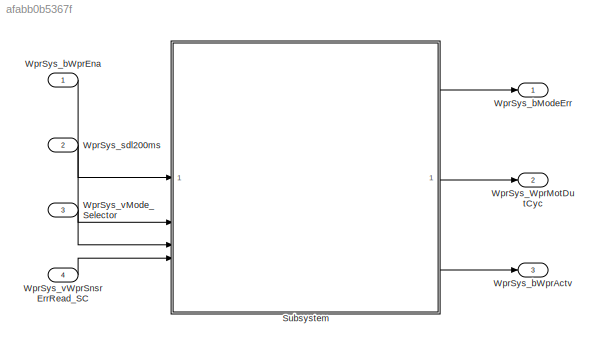
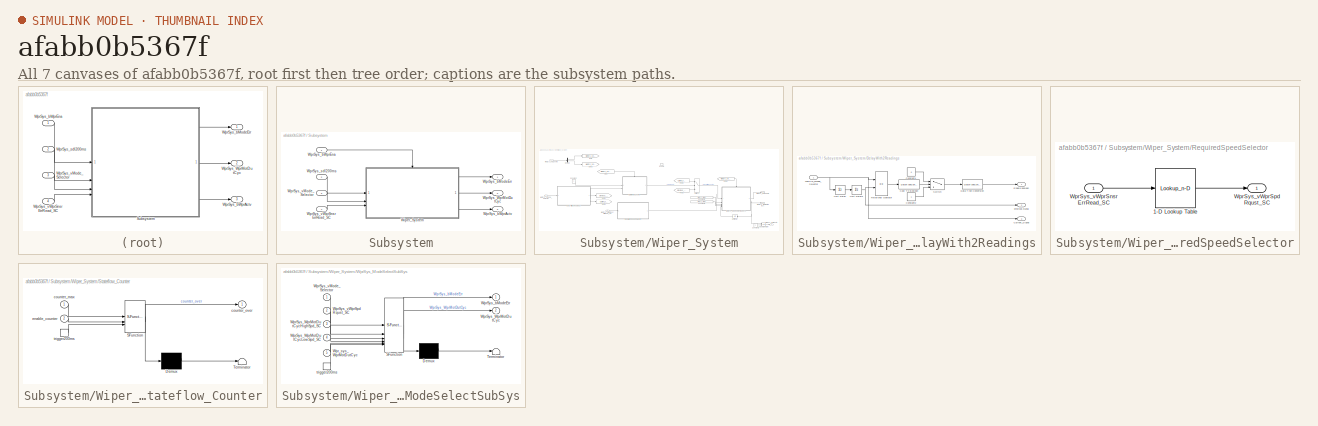
[diagram: thumbnail index - all 7 canvases of the model, root first then tree order]
MODEL slx_afabb0b5367f
KIND model
CONFIG AbsTol = auto
CONFIG EnableMultiTasking = off
CONFIG FixedStep = 0.1
CONFIG MaxStep = auto
CONFIG MinStep = auto
CONFIG RelTol = 1e-3
CONFIG SampleTimeConstraint = Unconstrained
CONFIG SolverName = FixedStepDiscrete
CONFIG StartTime = 0.0
CONFIG StopTime = 10.0
WORKSPACE source: mxarray member
WORKSPACE Param: Simulink.Parameter (value not decoded)
WORKSPACE WprSys_WprMotDutCycHighSpd = 0.7
WORKSPACE WprSys_WprMotDutCycHighSpd_SC = 0.7
WORKSPACE WprSys_WprMotDutCycLowSpd = 0.4
WORKSPACE WprSys_WprMotDutCycLowSpd_SC = 0.4
WORKSPACE WprSys_deltaSatVal = 0.05
WORKSPACE WprSys_vWprSnsrErrRead_SC: Simulink.Parameter (value not decoded)
WORKSPACE WprSys_vWprSpdRqust_SC: Simulink.Parameter (value not decoded)
BLOCK [SubSystem] Subsystem
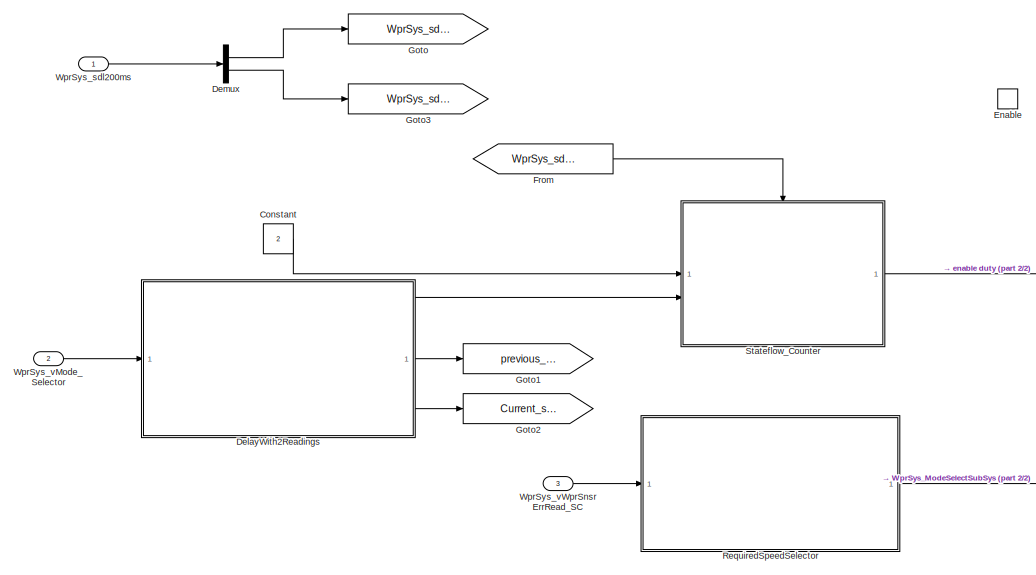
[diagram: Subsystem/Wiper_System - part 1/2, left side, full height]
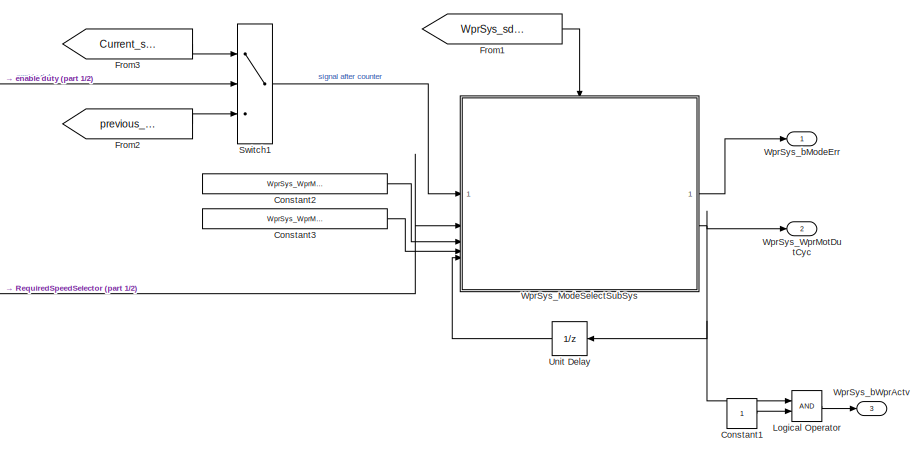
[diagram: Subsystem/Wiper_System - part 2/2, middle right region]
BLOCK [SubSystem] Subsystem/Wiper_System
BLOCK [Constant] Subsystem/Wiper_System/Constant
  Value = 2
BLOCK [Constant] Subsystem/Wiper_System/Constant1
BLOCK [Constant] Subsystem/Wiper_System/Constant2
  Value = WprSys_WprMotDutCycHighSpd_SC
BLOCK [Constant] Subsystem/Wiper_System/Constant3
  Value = WprSys_WprMotDutCycLowSpd_SC
BLOCK [SubSystem] Subsystem/Wiper_System/DelayWith2Readings
BLOCK [DataTypeConversion] Subsystem/Wiper_System/DelayWith2Readings/Cast To Boolean
  OutDataTypeStr = boolean
  RndMeth = Floor
  SaturateOnIntegerOverflow = off
BLOCK [Constant] Subsystem/Wiper_System/DelayWith2Readings/Constant1
  Value = 0
BLOCK [Constant] Subsystem/Wiper_System/DelayWith2Readings/Constant2
BLOCK [Outport] Subsystem/Wiper_System/DelayWith2Readings/Current_Signal
  Port = 3
BLOCK [DataTypeConversion] Subsystem/Wiper_System/DelayWith2Readings/Data Type Conversion
  OutDataTypeStr = boolean
  RndMeth = Floor
  SaturateOnIntegerOverflow = off
BLOCK [Outport] Subsystem/Wiper_System/DelayWith2Readings/Enable boolean
BLOCK [RelationalOperator] Subsystem/Wiper_System/DelayWith2Readings/Relational Operator
  InputSameDT = off
  Operator = ==
  OutDataTypeStr = boolean
  RndMeth = Simplest
BLOCK [Switch] Subsystem/Wiper_System/DelayWith2Readings/Switch
  Criteria = u2 ~= 0
  InputSameDT = off
  SaturateOnIntegerOverflow = off
BLOCK [UnitDelay] Subsystem/Wiper_System/DelayWith2Readings/Unit Delay
  HasFrameUpgradeWarning = on
  SampleTime = -1
BLOCK [UnitDelay] Subsystem/Wiper_System/DelayWith2Readings/Unit Delay1
  HasFrameUpgradeWarning = on
  SampleTime = -1
BLOCK [Inport] Subsystem/Wiper_System/DelayWith2Readings/WprSys_vMode_Selector
BLOCK [Outport] Subsystem/Wiper_System/DelayWith2Readings/previous signal
  Port = 2
BLOCK [Demux] Subsystem/Wiper_System/Demux
  Outputs = 2
BLOCK [EnablePort] Subsystem/Wiper_System/Enable
BLOCK [From] Subsystem/Wiper_System/From
  GotoTag = WprSys_sdl200msCount
BLOCK [From] Subsystem/Wiper_System/From1
  GotoTag = WprSys_sdl200msModSel
BLOCK [From] Subsystem/Wiper_System/From2
  GotoTag = previous_signal
BLOCK [From] Subsystem/Wiper_System/From3
  GotoTag = Current_signal
BLOCK [Goto] Subsystem/Wiper_System/Goto
  GotoTag = WprSys_sdl200msCount
BLOCK [Goto] Subsystem/Wiper_System/Goto1
  GotoTag = previous_signal
BLOCK [Goto] Subsystem/Wiper_System/Goto2
  GotoTag = Current_signal
BLOCK [Goto] Subsystem/Wiper_System/Goto3
  GotoTag = WprSys_sdl200msModSel
BLOCK [Logic] Subsystem/Wiper_System/Logical Operator
  AllPortsSameDT = off
  OutDataTypeStr = boolean
BLOCK [SubSystem] Subsystem/Wiper_System/RequiredSpeedSelector
BLOCK [Lookup_n-D] Subsystem/Wiper_System/RequiredSpeedSelector/1-D Lookup Table
  BreakpointsForDimension1 = WprSys_vWprSpdRqust_SC
  InputPortMap = u0
  InternalRulePriority = Speed
  InterpMethod = Linear Lagrange
  NumberOfTableDimensions = 1
  RndMeth = Simplest
  Table = WprSys_vWprSnsrErrRead_SC
BLOCK [Inport] Subsystem/Wiper_System/RequiredSpeedSelector/WprSys_vWprSnsrErrRead_SC
BLOCK [Outport] Subsystem/Wiper_System/RequiredSpeedSelector/WprSys_vWprSpdRqust_SC
BLOCK [SubSystem] Subsystem/Wiper_System/Stateflow_Counter
  AncestorBlock = Counter_timer/Stateflow_Counter
  ErrorFcn = Stateflow.Translate.translate
  LibrarySourceBlock = Counter_timer/Stateflow_Counter
  PermitHierarchicalResolution = ExplicitOnly
  SFBlockType = Chart
  TreatAsAtomicUnit = on
BLOCK [Demux] Subsystem/Wiper_System/Stateflow_Counter/ Demux 
  Outputs = 1
BLOCK [S-Function] Subsystem/Wiper_System/Stateflow_Counter/ SFunction 
  EnableBusSupport = on
  FunctionName = sf_sfun
  PortCounts = [3 2]
  SFcnIsStateOwnerBlock = off
  SFunctionDeploymentMode = off
  Tag = Stateflow S-Function 3
BLOCK [Terminator] Subsystem/Wiper_System/Stateflow_Counter/ Terminator 
BLOCK [Inport] Subsystem/Wiper_System/Stateflow_Counter/counter_max
BLOCK [Outport] Subsystem/Wiper_System/Stateflow_Counter/counter_over
BLOCK [Inport] Subsystem/Wiper_System/Stateflow_Counter/enable_counter
  Port = 2
BLOCK [TriggerPort] Subsystem/Wiper_System/Stateflow_Counter/trigger200ms
  ShowOutputPort = on
  StatesWhenEnabling = held
  TriggerType = either
  VariantControl = (inherit)
BLOCK [Switch] Subsystem/Wiper_System/Switch1
  Criteria = u2 ~= 0
  InputSameDT = off
  SaturateOnIntegerOverflow = off
BLOCK [UnitDelay] Subsystem/Wiper_System/Unit Delay
  HasFrameUpgradeWarning = on
  SampleTime = -1
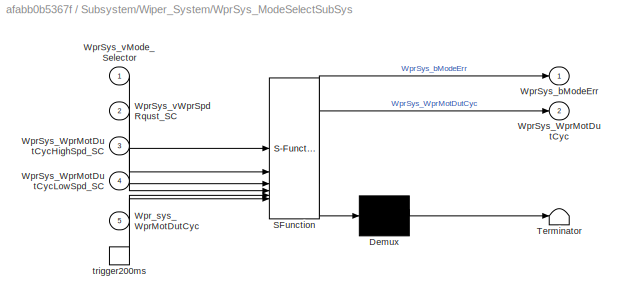
BLOCK [SubSystem] Subsystem/Wiper_System/WprSys_ModeSelectSubSys
  ErrorFcn = Stateflow.Translate.translate
  PermitHierarchicalResolution = ExplicitOnly
  SFBlockType = Chart
  TreatAsAtomicUnit = on
BLOCK [Demux] Subsystem/Wiper_System/WprSys_ModeSelectSubSys/ Demux 
  Outputs = 1
BLOCK [S-Function] Subsystem/Wiper_System/WprSys_ModeSelectSubSys/ SFunction 
  EnableBusSupport = on
  FunctionName = sf_sfun
  Parameters = WprSys_deltaSatVal
  PortCounts = [6 3]
  SFcnIsStateOwnerBlock = off
  SFunctionDeploymentMode = off
  Tag = Stateflow S-Function 1
BLOCK [Terminator] Subsystem/Wiper_System/WprSys_ModeSelectSubSys/ Terminator 
BLOCK [Outport] Subsystem/Wiper_System/WprSys_ModeSelectSubSys/WprSys_WprMotDutCyc
  Port = 2
BLOCK [Inport] Subsystem/Wiper_System/WprSys_ModeSelectSubSys/WprSys_WprMotDutCycHighSpd_SC
  Port = 3
BLOCK [Inport] Subsystem/Wiper_System/WprSys_ModeSelectSubSys/WprSys_WprMotDutCycLowSpd_SC
  Port = 4
BLOCK [Outport] Subsystem/Wiper_System/WprSys_ModeSelectSubSys/WprSys_bModeErr
BLOCK [Inport] Subsystem/Wiper_System/WprSys_ModeSelectSubSys/WprSys_vMode_Selector
BLOCK [Inport] Subsystem/Wiper_System/WprSys_ModeSelectSubSys/WprSys_vWprSpdRqust_SC
  Port = 2
BLOCK [Inport] Subsystem/Wiper_System/WprSys_ModeSelectSubSys/Wpr_sys_WprMotDutCyc
  Port = 5
BLOCK [TriggerPort] Subsystem/Wiper_System/WprSys_ModeSelectSubSys/trigger200ms
  ShowOutputPort = on
  StatesWhenEnabling = held
  TriggerType = either
  VariantControl = (inherit)
BLOCK [Outport] Subsystem/Wiper_System/WprSys_WprMotDutCyc
  Port = 2
BLOCK [Outport] Subsystem/Wiper_System/WprSys_bModeErr
BLOCK [Outport] Subsystem/Wiper_System/WprSys_bWprActv
  Port = 3
BLOCK [Inport] Subsystem/Wiper_System/WprSys_sdl200ms
BLOCK [Inport] Subsystem/Wiper_System/WprSys_vMode_Selector
  Port = 2
BLOCK [Inport] Subsystem/Wiper_System/WprSys_vWprSnsrErrRead_SC
  Port = 3
BLOCK [Outport] Subsystem/WprSys_WprMotDutCyc
  Port = 2
BLOCK [Outport] Subsystem/WprSys_bModeErr
BLOCK [Outport] Subsystem/WprSys_bWprActv
  Port = 3
BLOCK [Inport] Subsystem/WprSys_bWprEna
BLOCK [Inport] Subsystem/WprSys_sdl200ms
  Port = 2
BLOCK [Inport] Subsystem/WprSys_vMode_Selector
  Port = 3
BLOCK [Inport] Subsystem/WprSys_vWprSnsrErrRead_SC
  Port = 4
BLOCK [Outport] WprSys_WprMotDutCyc
  Port = 2
BLOCK [Outport] WprSys_bModeErr
BLOCK [Outport] WprSys_bWprActv
  Port = 3
BLOCK [Inport] WprSys_bWprEna
BLOCK [Inport] WprSys_sdl200ms
  Port = 2
BLOCK [Inport] WprSys_vMode_Selector
  Port = 3
BLOCK [Inport] WprSys_vWprSnsrErrRead_SC
  Port = 4
LINE Subsystem/Wiper_System/Constant1:1 -> Subsystem/Wiper_System/Logical Operator:2
LINE Subsystem/Wiper_System/Constant2:1 -> Subsystem/Wiper_System/WprSys_ModeSelectSubSys:3
LINE Subsystem/Wiper_System/Constant3:1 -> Subsystem/Wiper_System/WprSys_ModeSelectSubSys:4
LINE Subsystem/Wiper_System/Constant:1 -> Subsystem/Wiper_System/Stateflow_Counter:1
LINE Subsystem/Wiper_System/DelayWith2Readings/Cast To Boolean:1 -> Subsystem/Wiper_System/DelayWith2Readings/Switch:2
LINE Subsystem/Wiper_System/DelayWith2Readings/Constant1:1 -> Subsystem/Wiper_System/DelayWith2Readings/Switch:1
LINE Subsystem/Wiper_System/DelayWith2Readings/Constant2:1 -> Subsystem/Wiper_System/DelayWith2Readings/Switch:3
LINE Subsystem/Wiper_System/DelayWith2Readings/Data Type Conversion:1 -> Subsystem/Wiper_System/DelayWith2Readings/Enable boolean:1
LINE Subsystem/Wiper_System/DelayWith2Readings/Relational Operator:1 -> Subsystem/Wiper_System/DelayWith2Readings/Cast To Boolean:1
LINE Subsystem/Wiper_System/DelayWith2Readings/Switch:1 -> Subsystem/Wiper_System/DelayWith2Readings/Data Type Conversion:1
NET Subsystem/Wiper_System/DelayWith2Readings/Unit Delay1:1 -> Subsystem/Wiper_System/DelayWith2Readings/Relational Operator:2, Subsystem/Wiper_System/DelayWith2Readings/previous signal:1
LINE Subsystem/Wiper_System/DelayWith2Readings/Unit Delay:1 -> Subsystem/Wiper_System/DelayWith2Readings/Unit Delay1:1
NET Subsystem/Wiper_System/DelayWith2Readings/WprSys_vMode_Selector:1 -> Subsystem/Wiper_System/DelayWith2Readings/Current_Signal:1, Subsystem/Wiper_System/DelayWith2Readings/Relational Operator:1, Subsystem/Wiper_System/DelayWith2Readings/Unit Delay:1
LINE Subsystem/Wiper_System/DelayWith2Readings:1 -> Subsystem/Wiper_System/Stateflow_Counter:2
LINE Subsystem/Wiper_System/DelayWith2Readings:2 -> Subsystem/Wiper_System/Goto1:1
LINE Subsystem/Wiper_System/DelayWith2Readings:3 -> Subsystem/Wiper_System/Goto2:1
LINE Subsystem/Wiper_System/Demux:1 -> Subsystem/Wiper_System/Goto:1
LINE Subsystem/Wiper_System/Demux:2 -> Subsystem/Wiper_System/Goto3:1
LINE Subsystem/Wiper_System/From1:1 -> Subsystem/Wiper_System/WprSys_ModeSelectSubSys:trigger
LINE Subsystem/Wiper_System/From2:1 -> Subsystem/Wiper_System/Switch1:3
LINE Subsystem/Wiper_System/From3:1 -> Subsystem/Wiper_System/Switch1:1
LINE Subsystem/Wiper_System/From:1 -> Subsystem/Wiper_System/Stateflow_Counter:trigger
LINE Subsystem/Wiper_System/Logical Operator:1 -> Subsystem/Wiper_System/WprSys_bWprActv:1
LINE Subsystem/Wiper_System/RequiredSpeedSelector/1-D Lookup Table:1 -> Subsystem/Wiper_System/RequiredSpeedSelector/WprSys_vWprSpdRqust_SC:1
LINE Subsystem/Wiper_System/RequiredSpeedSelector/WprSys_vWprSnsrErrRead_SC:1 -> Subsystem/Wiper_System/RequiredSpeedSelector/1-D Lookup Table:1
LINE Subsystem/Wiper_System/RequiredSpeedSelector:1 -> Subsystem/Wiper_System/WprSys_ModeSelectSubSys:2
LINE Subsystem/Wiper_System/Stateflow_Counter:1 -> Subsystem/Wiper_System/Switch1:2
LINE Subsystem/Wiper_System/Switch1:1 -> Subsystem/Wiper_System/WprSys_ModeSelectSubSys:1
LINE Subsystem/Wiper_System/Unit Delay:1 -> Subsystem/Wiper_System/WprSys_ModeSelectSubSys:5
LINE Subsystem/Wiper_System/WprSys_ModeSelectSubSys:1 -> Subsystem/Wiper_System/WprSys_bModeErr:1
NET Subsystem/Wiper_System/WprSys_ModeSelectSubSys:2 -> Subsystem/Wiper_System/Logical Operator:1, Subsystem/Wiper_System/Unit Delay:1, Subsystem/Wiper_System/WprSys_WprMotDutCyc:1
LINE Subsystem/Wiper_System/WprSys_sdl200ms:1 -> Subsystem/Wiper_System/Demux:1
LINE Subsystem/Wiper_System/WprSys_vMode_Selector:1 -> Subsystem/Wiper_System/DelayWith2Readings:1
LINE Subsystem/Wiper_System/WprSys_vWprSnsrErrRead_SC:1 -> Subsystem/Wiper_System/RequiredSpeedSelector:1
LINE Subsystem/Wiper_System:1 -> Subsystem/WprSys_bModeErr:1
LINE Subsystem/Wiper_System:2 -> Subsystem/WprSys_WprMotDutCyc:1
LINE Subsystem/Wiper_System:3 -> Subsystem/WprSys_bWprActv:1
LINE Subsystem/WprSys_bWprEna:1 -> Subsystem/Wiper_System:enable
LINE Subsystem/WprSys_sdl200ms:1 -> Subsystem/Wiper_System:1
LINE Subsystem/WprSys_vMode_Selector:1 -> Subsystem/Wiper_System:2
LINE Subsystem/WprSys_vWprSnsrErrRead_SC:1 -> Subsystem/Wiper_System:3
LINE Subsystem:1 -> WprSys_bModeErr:1
LINE Subsystem:2 -> WprSys_WprMotDutCyc:1
LINE Subsystem:3 -> WprSys_bWprActv:1
LINE WprSys_bWprEna:1 -> Subsystem:1
LINE WprSys_sdl200ms:1 -> Subsystem:2
LINE WprSys_vMode_Selector:1 -> Subsystem:3
LINE WprSys_vWprSnsrErrRead_SC:1 -> Subsystem:4
note: NET lines group one-source signal fan-out (src -> all destinations, sorted); 1:1 wires keep LINE
CHART Subsystem/Wiper_System/Stateflow_Counter states=2 transitions=5
  STATE_LABEL 'Counter_on\ncounter_over=false;\ncounter = counter+1;'
  STATE_LABEL 'counter_reset\ncounter=0;\n'
CHART Subsystem/Wiper_System/WprSys_ModeSelectSubSys states=9 transitions=12
  STATE_LABEL 'Wiper'
  STATE_LABEL 'Off_Mode\nWprSys_WprMotDutCyc=0;'
  STATE_LABEL 'Auto_Mode\n'
  STATE_LABEL 'Below_sat\nWprSys_WprMotDutCyc=WprSys_WprMotDutCyc+delta;\n'
  STATE_LABEL 'Above_sat\nWprSys_WprMotDutCyc=WprSys_WprMotDutCyc+delta;\n'
  STATE_LABEL 'Within_Sat\nWprSys_WprMotDutCyc=WprSys_WprMotDutCyc+delta;\n'
  STATE_LABEL '[delta<=-WprSys_deltaSatVal]{delta=-WprSys_deltaSatVal}'
  STATE_LABEL '[delta>=WprSys_deltaSatVal]{delta=WprSys_deltaSatVal}'
  STATE_LABEL 'Error_Mode\nWprSys_bModeErr=true;\n'
  STATE_LABEL 'High_Speed\nWprSys_WprMotDutCyc=WprSys_WprMotDutCycHighSpd_SC;'
  STATE_LABEL 'Low_Speed\nWprSys_WprMotDutCyc=WprSys_WprMotDutCycLowSpd_SC;'
  STATE_LABEL '[WprSys_vMode_Selector==0]'
  STATE_LABEL '{WprSys_bModeErr=false;}'
  STATE_LABEL '[WprSys_vMode_Selector==1]'
  STATE_LABEL '[WprSys_vMode_Selector==2]'
  STATE_LABEL '[WprSys_vMode_Selector==3]{delta=WprSys_vWprSpdRqust_SC-Wpr_sys_WprMotDutCyc;}'
  STATE_LABEL 'Off_Mode\nWprSys_WprMotDutCyc=0;'
  STATE_LABEL 'Auto_Mode\n'
  STATE_LABEL 'Below_sat\nWprSys_WprMotDutCyc=WprSys_WprMotDutCyc+delta;\n'
  STATE_LABEL 'Above_sat\nWprSys_WprMotDutCyc=WprSys_WprMotDutCyc+delta;\n'
  STATE_LABEL 'Within_Sat\nWprSys_WprMotDutCyc=WprSys_WprMotDutCyc+delta;\n'
  STATE_LABEL '[delta<=-WprSys_deltaSatVal]{delta=-WprSys_deltaSatVal}'
  STATE_LABEL '[delta>=WprSys_deltaSatVal]{delta=WprSys_deltaSatVal}'
  STATE_LABEL 'Below_sat\nWprSys_WprMotDutCyc=WprSys_WprMotDutCyc+delta;\n'
  STATE_LABEL 'Above_sat\nWprSys_WprMotDutCyc=WprSys_WprMotDutCyc+delta;\n'
  STATE_LABEL 'Within_Sat\nWprSys_WprMotDutCyc=WprSys_WprMotDutCyc+delta;\n'
  STATE_LABEL 'Error_Mode\nWprSys_bModeErr=true;\n'
  STATE_LABEL 'High_Speed\nWprSys_WprMotDutCyc=WprSys_WprMotDutCycHighSpd_SC;'
  STATE_LABEL 'Low_Speed\nWprSys_WprMotDutCyc=WprSys_WprMotDutCycLowSpd_SC;'
CHART  states=0 transitions=0
CHART  states=0 transitions=0
